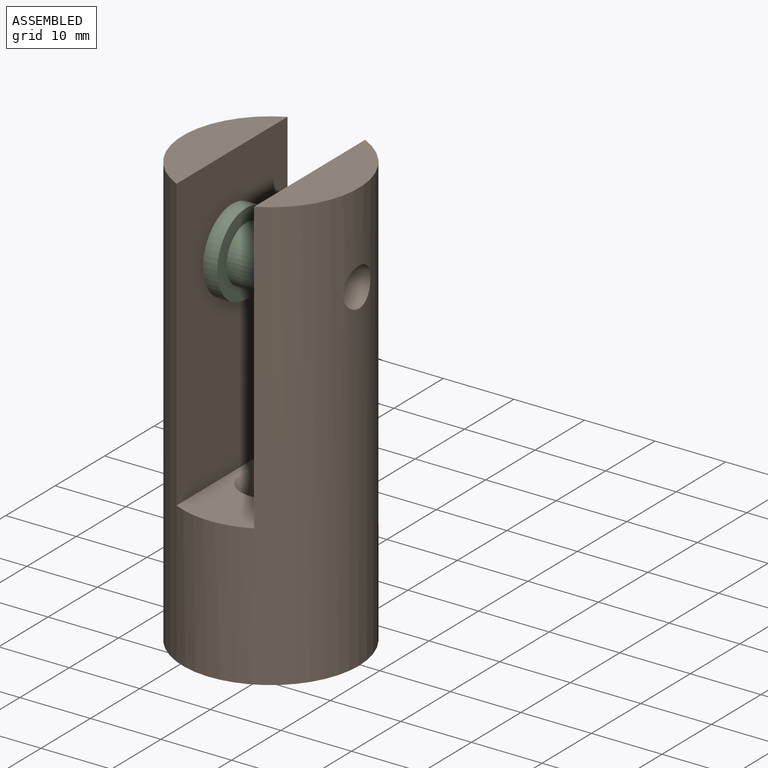
[diagram: assembled view]
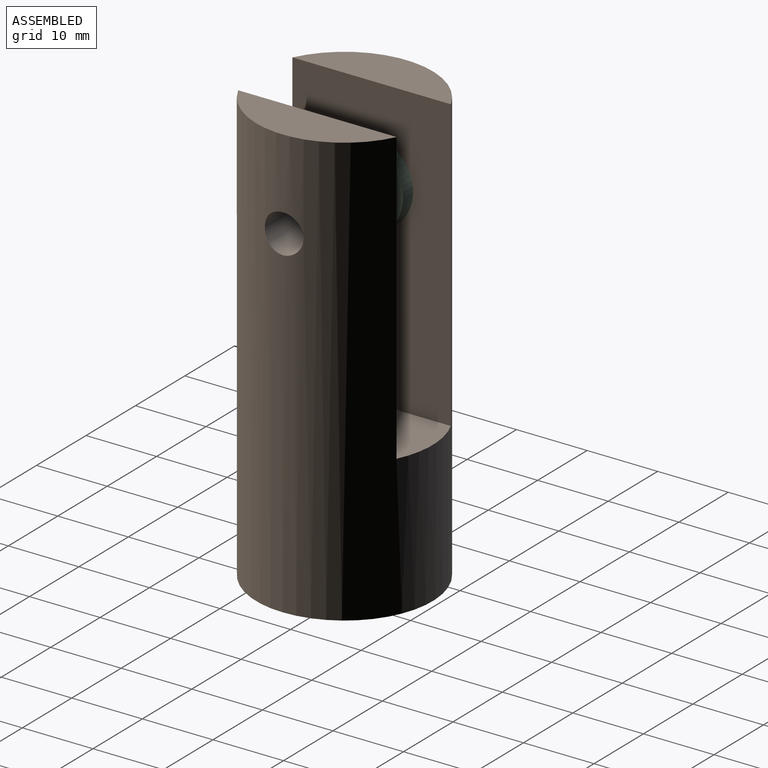
[diagram: assembled view, second angle]
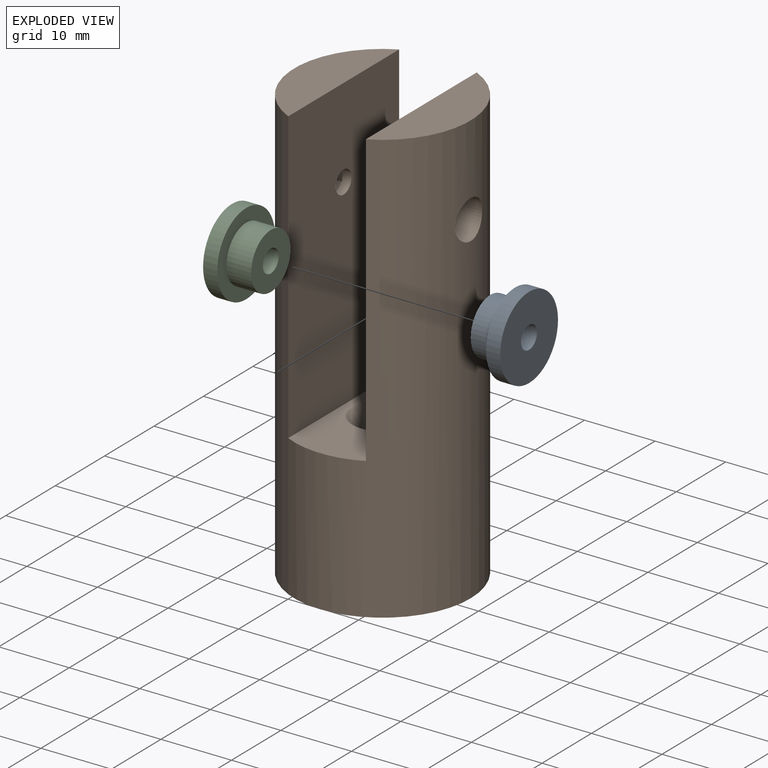
[diagram: exploded view]
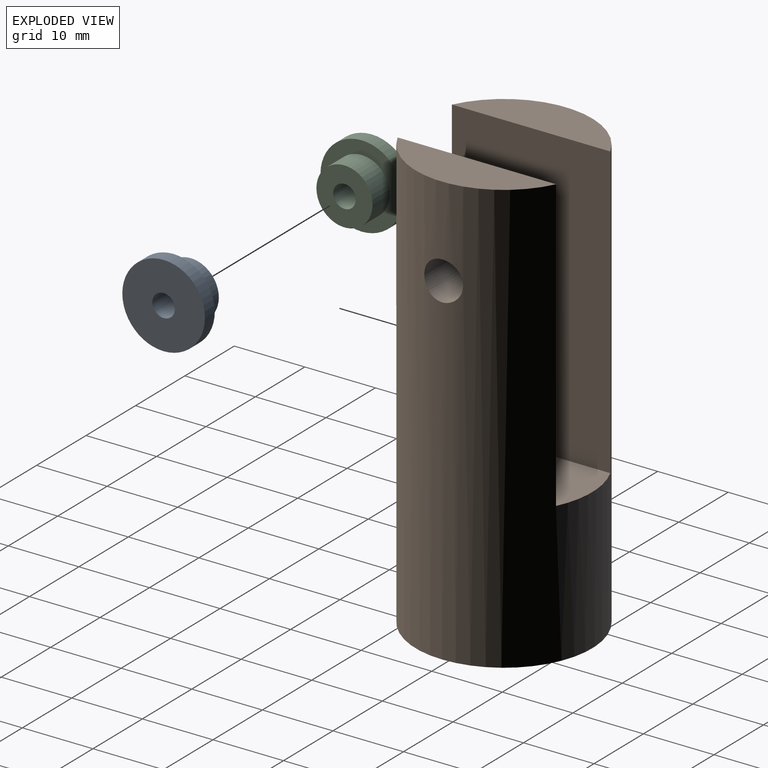
[diagram: exploded view, second angle]
ASSEMBLY  parts=3 mates=2
PART A: 6 faces, bbox 5.5x11.7x11.7 mm
  f0: cylinder r=1.6mm len=5.5mm, axis (-1,0,0), area 55.3mm2, adj f3,f5
  f1: cylinder r=5.85mm len=11.7mm, axis (-1,0,0), area 73.5mm2, adj f2,f3
  f2: plane 11.7x11.7mm, normal (1,0,0), area 57.9mm2, adj f1,f4
  f3: plane 11.7x11.7mm, normal (-1,0,0), area 99.5mm2, adj f0,f1
  f4: cylinder r=3.98mm len=7.95mm, axis (-1,0,0), area 87.4mm2, adj f2,f5
  f5: plane 7.95x7.95mm, normal (1,0,0), area 41.6mm2, adj f0,f4
PART B: 20 faces, bbox 25x25x61.2 mm
  f0: cylinder r=12.5mm len=61.2mm, axis (0,0,-1), area 3818.4mm2, adj f1,f2,f3,f4,f5,f6,f10,f13
  f1: plane 22.45x7mm, normal (0,0,1), area 112.5mm2, adj f0,f5
  f2: plane 22.45x7mm, normal (0,0,1), area 112.5mm2, adj f0,f6
  f3: plane 25x25mm, normal (0,0,-1), area 475mm2, adj f0,f7
  f4: plane 25x11mm, normal (0,0,1), area 209.1mm2, adj f0,f5,f6,f8
  f5: plane 41.2x22.45mm, normal (-1,0,0), area 916.9mm2, adj f0,f1,f4,f11
  f6: plane 41.2x22.45mm, normal (1,0,0), area 916.9mm2, adj f0,f2,f4,f9
  f7: cylinder r=2.25mm len=17.7mm, axis (0,0,1), area 250.2mm2, adj f3,f8
  f8: cone r=2.25mm half-angle=41deg, axis (0,0,1), area 62.3mm2, adj f4,f7
  f9: cylinder r=1.6mm len=3.2mm, axis (1,0,0), area 12.6mm2, adj f6,f19
  f10: cylinder r=2.75mm len=6.38mm, axis (1,0,0), area 107.5mm2, adj f0,f12
  f11: cylinder r=1.6mm len=3.2mm, axis (1,0,0), area 6.3mm2, adj f5,f12
  f12: plane 5.5x5.5mm, normal (1,0,0), area 15.7mm2, adj f10,f11
  f13: plane 5.45x3.15mm, normal (0,1,0), area 17.1mm2, adj f0,f14,f18,f19
  f14: plane 5.76x2.73mm, normal (0,0.5,0.87), area 17.8mm2, adj f0,f13,f15,f19
  f15: plane 5.76x2.73mm, normal (0,-0.5,0.87), area 17.8mm2, adj f0,f14,f16,f19
  f16: plane 5.45x3.15mm, normal (0,-1,0), area 17.1mm2, adj f0,f15,f17,f19
  f17: plane 5.76x2.73mm, normal (0,-0.5,-0.87), area 17.8mm2, adj f0,f16,f18,f19
  f18: plane 5.76x2.73mm, normal (0,0.5,-0.87), area 17.8mm2, adj f0,f13,f17,f19
  f19: plane 6.29x5.45mm, normal (-1,0,0), area 17.7mm2, adj f9,f13,f14,f15,f16,f17,f18
PART C: same geometry as A
PLACE A rot(axis=(0,1,0),180deg) t=(11.56,-33.72,56.47)mm
PLACE B t=(6.06,-2.13,-8.43)mm
PLACE C t=(0.56,-33.72,23.67)mm
MATE revolute C.f0 <-> B.f9  axis (-1,0,0) through (0.56,-2.13,40.07)mm
MATE revolute A.f0 <-> B.f9  axis (1,0,0) through (11.56,-2.13,40.07)mm
